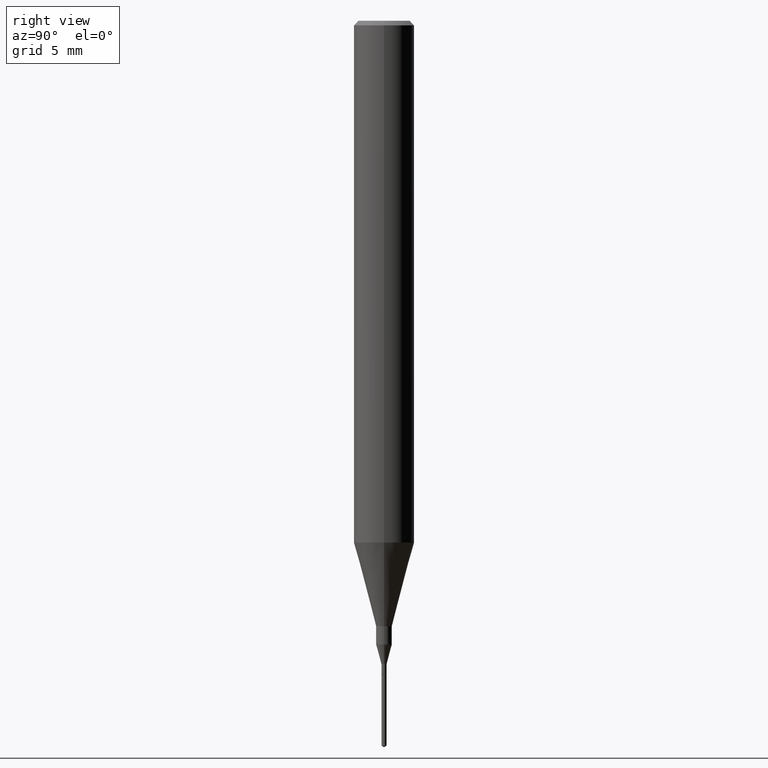
[diagram: clean part render]
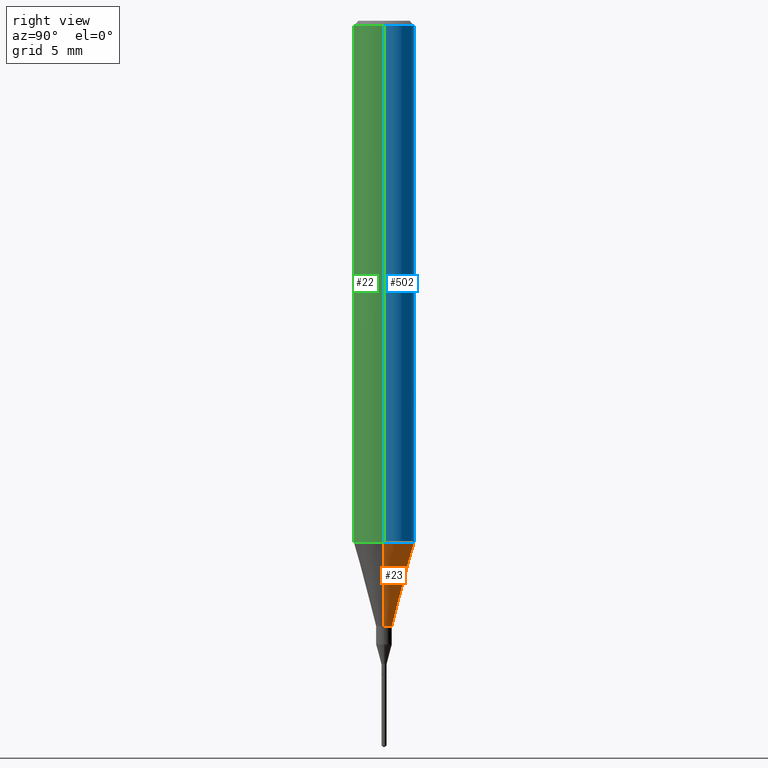
[diagram: same view with three faces highlighted in distinct colors, each labeled with its STEP entity id]
A machine part, right view with three faces highlighted in distinct colors.
Their STEP definitions:

[orange] entity #23 — the highlighted conical surface has half-angle 15 deg.
#4 = DIRECTION ( 'NONE',  ( -0.2588190451025214611, 5.211531920934551042E-15, 0.9659258262890682012 ) ) ;
#17 = DIRECTION ( 'NONE',  ( -2.445468806185136597E-29, 3.491481338843145583E-15, 1.000000000000000000 ) ) ;
#23 = ADVANCED_FACE ( 'NONE', ( #108 ), #92, .T. ) ;
#26 = CARTESIAN_POINT ( 'NONE',  ( -0.06250000000000012490, -3.317607122755211895E-15, -1.077392650149939346 ) ) ;
#35 = DIRECTION ( 'NONE',  ( -2.445468806185136597E-29, 3.491481338843145583E-15, 1.000000000000000000 ) ) ;
#54 = VERTEX_POINT ( 'NONE', #207 ) ;
#60 = DIRECTION ( 'NONE',  ( 1.000000000000000000, -6.982962677686264344E-15, 0.000000000000000000 ) ) ;
#77 = VECTOR ( 'NONE', #562, 39.37007874015747433 ) ;
#92 = CONICAL_SURFACE ( 'NONE', #491, 0.06250000000000012490, 0.2617993877991501295 ) ;
#101 = EDGE_CURVE ( 'NONE', #503, #292, #223, .T. ) ;
#108 = FACE_OUTER_BOUND ( 'NONE', #381, .T. ) ;
#126 = DIRECTION ( 'NONE',  ( -2.445468806185136597E-29, 3.491481338843145583E-15, 1.000000000000000000 ) ) ;
#131 = CIRCLE ( 'NONE', #145, 0.06250000000000012490 ) ;
#145 = AXIS2_PLACEMENT_3D ( 'NONE', #536, #35, #399 ) ;
#165 = EDGE_CURVE ( 'NONE', #54, #274, #131, .T. ) ;
#179 = AXIS2_PLACEMENT_3D ( 'NONE', #264, #126, #308 ) ;
#191 = CARTESIAN_POINT ( 'NONE',  ( -0.01624999999999999709, -4.315134870250894333E-15, -1.250000000000000000 ) ) ;
#203 = CARTESIAN_POINT ( 'NONE',  ( 0.06250000000000012490, -4.198131499960668153E-15, -1.077392650149939346 ) ) ;
#207 = CARTESIAN_POINT ( 'NONE',  ( 0.06250000000000012490, -4.198131499960668153E-15, -1.077392650149939346 ) ) ;
#212 = ORIENTED_EDGE ( 'NONE', *, *, #505, .T. ) ;
#223 = CIRCLE ( 'NONE', #179, 0.01624999999999999709 ) ;
#264 = CARTESIAN_POINT ( 'NONE',  ( 3.056836007731421306E-29, -4.364351673553932471E-15, -1.250000000000000000 ) ) ;
#267 = LINE ( 'NONE', #498, #582 ) ;
#274 = VERTEX_POINT ( 'NONE', #26 ) ;
#292 = VERTEX_POINT ( 'NONE', #191 ) ;
#298 = ORIENTED_EDGE ( 'NONE', *, *, #101, .T. ) ;
#308 = DIRECTION ( 'NONE',  ( 1.000000000000000000, -6.982962677686288799E-15, 0.000000000000000000 ) ) ;
#318 = EDGE_CURVE ( 'NONE', #503, #54, #472, .T. ) ;
#381 = EDGE_LOOP ( 'NONE', ( #298, #212, #571, #386 ) ) ;
#386 = ORIENTED_EDGE ( 'NONE', *, *, #318, .F. ) ;
#398 = CARTESIAN_POINT ( 'NONE',  ( 0.01624999999999999709, -4.477824817066334148E-15, -1.250000000000000000 ) ) ;
#399 = DIRECTION ( 'NONE',  ( 1.000000000000000000, -6.982962677686264344E-15, 0.000000000000000000 ) ) ;
#472 = LINE ( 'NONE', #203, #77 ) ;
#491 = AXIS2_PLACEMENT_3D ( 'NONE', #523, #17, #60 ) ;
#498 = CARTESIAN_POINT ( 'NONE',  ( -0.06250000000000012490, -3.317607122755211895E-15, -1.077392650149939346 ) ) ;
#503 = VERTEX_POINT ( 'NONE', #398 ) ;
#505 = EDGE_CURVE ( 'NONE', #292, #274, #267, .T. ) ;
#523 = CARTESIAN_POINT ( 'NONE',  ( 2.634730117954813298E-29, -3.761696332605275695E-15, -1.077392650149939346 ) ) ;
#536 = CARTESIAN_POINT ( 'NONE',  ( 2.634730117954813298E-29, -3.761696332605275695E-15, -1.077392650149939346 ) ) ;
#562 = DIRECTION ( 'NONE',  ( 0.2588190451025214611, 1.565188264969621573E-15, 0.9659258262890682012 ) ) ;
#571 = ORIENTED_EDGE ( 'NONE', *, *, #165, .F. ) ;
#582 = VECTOR ( 'NONE', #4, 39.37007874015747433 ) ;

[blue] entity #502 — the highlighted cylindrical surface (edge-blend (fillet) strip) has radius 1.5875 mm, axis along (-0, 0, 1).
#2 = EDGE_CURVE ( 'NONE', #54, #312, #493, .T. ) ;
#5 = EDGE_CURVE ( 'NONE', #274, #185, #248, .T. ) ;
#26 = CARTESIAN_POINT ( 'NONE',  ( -0.06250000000000012490, -3.317607122755211895E-15, -1.077392650149939346 ) ) ;
#35 = DIRECTION ( 'NONE',  ( -2.445468806185136597E-29, 3.491481338843145583E-15, 1.000000000000000000 ) ) ;
#54 = VERTEX_POINT ( 'NONE', #207 ) ;
#79 = DIRECTION ( 'NONE',  ( -2.445468806185136597E-29, 3.491481338843145583E-15, 1.000000000000000000 ) ) ;
#113 = ORIENTED_EDGE ( 'NONE', *, *, #174, .F. ) ;
#116 = FACE_OUTER_BOUND ( 'NONE', #220, .T. ) ;
#119 = CARTESIAN_POINT ( 'NONE',  ( 0.000000000000000000, 0.000000000000000000, 0.000000000000000000 ) ) ;
#131 = CIRCLE ( 'NONE', #145, 0.06250000000000012490 ) ;
#145 = AXIS2_PLACEMENT_3D ( 'NONE', #536, #35, #399 ) ;
#157 = DIRECTION ( 'NONE',  ( -2.445468806185136877E-29, 3.491481338843145188E-15, 1.000000000000000000 ) ) ;
#160 = CARTESIAN_POINT ( 'NONE',  ( 2.292627005798581061E-31, -3.273263755165471417E-17, -0.009375000000000063838 ) ) ;
#165 = EDGE_CURVE ( 'NONE', #54, #274, #131, .T. ) ;
#174 = EDGE_CURVE ( 'NONE', #312, #185, #465, .T. ) ;
#185 = VERTEX_POINT ( 'NONE', #341 ) ;
#193 = CARTESIAN_POINT ( 'NONE',  ( 0.06250000000000000000, -4.691678049070463404E-16, -0.009375000000000063838 ) ) ;
#207 = CARTESIAN_POINT ( 'NONE',  ( 0.06250000000000012490, -4.198131499960668153E-15, -1.077392650149939346 ) ) ;
#217 = ORIENTED_EDGE ( 'NONE', *, *, #5, .T. ) ;
#220 = EDGE_LOOP ( 'NONE', ( #563, #217, #113, #410 ) ) ;
#248 = LINE ( 'NONE', #331, #569 ) ;
#274 = VERTEX_POINT ( 'NONE', #26 ) ;
#312 = VERTEX_POINT ( 'NONE', #193 ) ;
#331 = CARTESIAN_POINT ( 'NONE',  ( -0.06250000000000006939, 4.440892098500631092E-16, -3.074334431409319267E-30 ) ) ;
#341 = CARTESIAN_POINT ( 'NONE',  ( -0.06250000000000000000, -1.453125275228401137E-15, -0.009375000000000063838 ) ) ;
#343 = DIRECTION ( 'NONE',  ( 1.000000000000000000, -6.982962677686266711E-15, 0.000000000000000000 ) ) ;
#361 = AXIS2_PLACEMENT_3D ( 'NONE', #160, #79, #343 ) ;
#374 = DIRECTION ( 'NONE',  ( -2.445468806185136877E-29, 3.491481338843145188E-15, 1.000000000000000000 ) ) ;
#399 = DIRECTION ( 'NONE',  ( 1.000000000000000000, -6.982962677686264344E-15, 0.000000000000000000 ) ) ;
#410 = ORIENTED_EDGE ( 'NONE', *, *, #2, .F. ) ;
#465 = CIRCLE ( 'NONE', #361, 0.06250000000000000000 ) ;
#484 = CYLINDRICAL_SURFACE ( 'NONE', #546, 0.06250000000000006939 ) ;
#493 = LINE ( 'NONE', #588, #533 ) ;
#502 = ADVANCED_FACE ( 'NONE', ( #116 ), #484, .T. ) ;
#504 = DIRECTION ( 'NONE',  ( -2.445468806185136597E-29, 3.491481338843145583E-15, 1.000000000000000000 ) ) ;
#533 = VECTOR ( 'NONE', #157, 39.37007874015748143 ) ;
#536 = CARTESIAN_POINT ( 'NONE',  ( 2.634730117954813298E-29, -3.761696332605275695E-15, -1.077392650149939346 ) ) ;
#546 = AXIS2_PLACEMENT_3D ( 'NONE', #119, #504, #551 ) ;
#551 = DIRECTION ( 'NONE',  ( 1.000000000000000000, -6.982962677686266711E-15, 4.876176775795935793E-29 ) ) ;
#563 = ORIENTED_EDGE ( 'NONE', *, *, #165, .T. ) ;
#569 = VECTOR ( 'NONE', #374, 39.37007874015748143 ) ;
#588 = CARTESIAN_POINT ( 'NONE',  ( 0.06250000000000006939, -4.364351673553921624E-16, 3.047610484872463374E-30 ) ) ;

[green] entity #22 — the highlighted cylindrical surface (edge-blend (fillet) strip) has radius 1.5875 mm, axis along (-0, 0, 1).
#2 = EDGE_CURVE ( 'NONE', #54, #312, #493, .T. ) ;
#5 = EDGE_CURVE ( 'NONE', #274, #185, #248, .T. ) ;
#22 = ADVANCED_FACE ( 'NONE', ( #566 ), #64, .T. ) ;
#26 = CARTESIAN_POINT ( 'NONE',  ( -0.06250000000000012490, -3.317607122755211895E-15, -1.077392650149939346 ) ) ;
#31 = ORIENTED_EDGE ( 'NONE', *, *, #371, .F. ) ;
#51 = CARTESIAN_POINT ( 'NONE',  ( 0.000000000000000000, 0.000000000000000000, 0.000000000000000000 ) ) ;
#54 = VERTEX_POINT ( 'NONE', #207 ) ;
#64 = CYLINDRICAL_SURFACE ( 'NONE', #66, 0.06250000000000006939 ) ;
#66 = AXIS2_PLACEMENT_3D ( 'NONE', #51, #249, #286 ) ;
#132 = DIRECTION ( 'NONE',  ( 1.000000000000000000, -6.982962677686264344E-15, 0.000000000000000000 ) ) ;
#152 = DIRECTION ( 'NONE',  ( -2.445468806185136597E-29, 3.491481338843145583E-15, 1.000000000000000000 ) ) ;
#157 = DIRECTION ( 'NONE',  ( -2.445468806185136877E-29, 3.491481338843145188E-15, 1.000000000000000000 ) ) ;
#166 = EDGE_LOOP ( 'NONE', ( #548, #190, #528, #31 ) ) ;
#185 = VERTEX_POINT ( 'NONE', #341 ) ;
#190 = ORIENTED_EDGE ( 'NONE', *, *, #538, .T. ) ;
#193 = CARTESIAN_POINT ( 'NONE',  ( 0.06250000000000000000, -4.691678049070463404E-16, -0.009375000000000063838 ) ) ;
#207 = CARTESIAN_POINT ( 'NONE',  ( 0.06250000000000012490, -4.198131499960668153E-15, -1.077392650149939346 ) ) ;
#248 = LINE ( 'NONE', #331, #569 ) ;
#249 = DIRECTION ( 'NONE',  ( -2.445468806185136597E-29, 3.491481338843145583E-15, 1.000000000000000000 ) ) ;
#273 = DIRECTION ( 'NONE',  ( -2.445468806185136597E-29, 3.491481338843145583E-15, 1.000000000000000000 ) ) ;
#274 = VERTEX_POINT ( 'NONE', #26 ) ;
#286 = DIRECTION ( 'NONE',  ( 1.000000000000000000, -6.982962677686266711E-15, 4.876176775795935793E-29 ) ) ;
#287 = CIRCLE ( 'NONE', #355, 0.06250000000000012490 ) ;
#312 = VERTEX_POINT ( 'NONE', #193 ) ;
#330 = CARTESIAN_POINT ( 'NONE',  ( 2.292627005798581061E-31, -3.273263755165471417E-17, -0.009375000000000063838 ) ) ;
#331 = CARTESIAN_POINT ( 'NONE',  ( -0.06250000000000006939, 4.440892098500631092E-16, -3.074334431409319267E-30 ) ) ;
#334 = DIRECTION ( 'NONE',  ( 1.000000000000000000, -6.982962677686266711E-15, 0.000000000000000000 ) ) ;
#341 = CARTESIAN_POINT ( 'NONE',  ( -0.06250000000000000000, -1.453125275228401137E-15, -0.009375000000000063838 ) ) ;
#355 = AXIS2_PLACEMENT_3D ( 'NONE', #543, #273, #132 ) ;
#368 = CIRCLE ( 'NONE', #451, 0.06250000000000000000 ) ;
#371 = EDGE_CURVE ( 'NONE', #185, #312, #368, .T. ) ;
#374 = DIRECTION ( 'NONE',  ( -2.445468806185136877E-29, 3.491481338843145188E-15, 1.000000000000000000 ) ) ;
#451 = AXIS2_PLACEMENT_3D ( 'NONE', #330, #152, #334 ) ;
#493 = LINE ( 'NONE', #588, #533 ) ;
#528 = ORIENTED_EDGE ( 'NONE', *, *, #2, .T. ) ;
#533 = VECTOR ( 'NONE', #157, 39.37007874015748143 ) ;
#538 = EDGE_CURVE ( 'NONE', #274, #54, #287, .T. ) ;
#543 = CARTESIAN_POINT ( 'NONE',  ( 2.634730117954813298E-29, -3.761696332605275695E-15, -1.077392650149939346 ) ) ;
#548 = ORIENTED_EDGE ( 'NONE', *, *, #5, .F. ) ;
#566 = FACE_OUTER_BOUND ( 'NONE', #166, .T. ) ;
#569 = VECTOR ( 'NONE', #374, 39.37007874015748143 ) ;
#588 = CARTESIAN_POINT ( 'NONE',  ( 0.06250000000000006939, -4.364351673553921624E-16, 3.047610484872463374E-30 ) ) ;